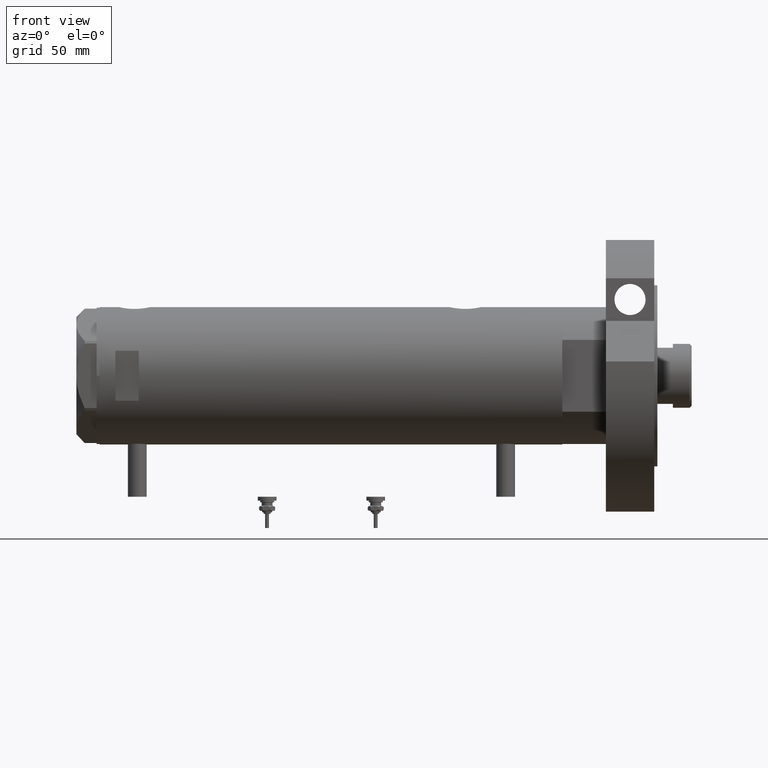
[diagram: clean part render]
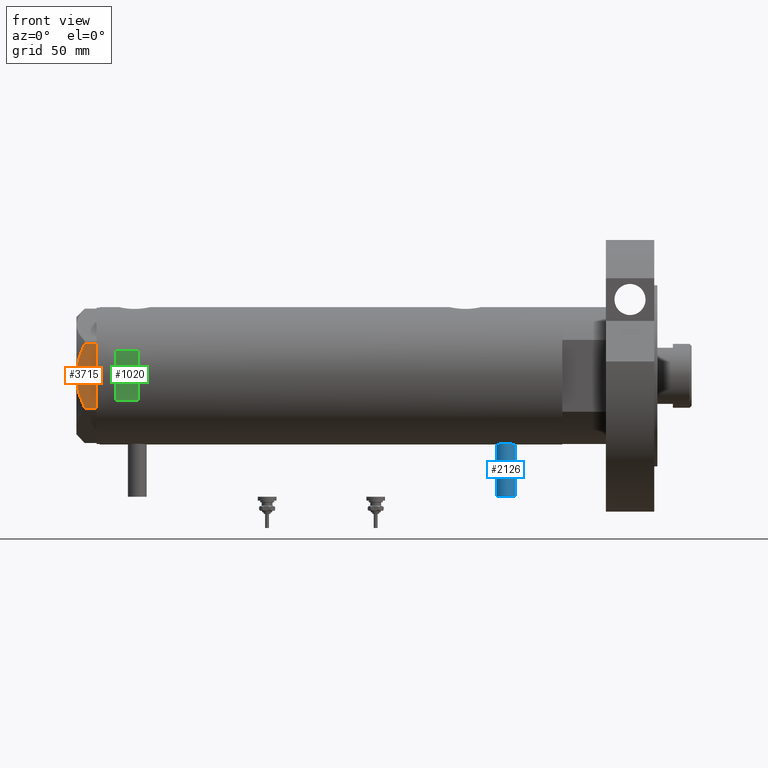
[diagram: same view with three faces highlighted in distinct colors, each labeled with its STEP entity id]
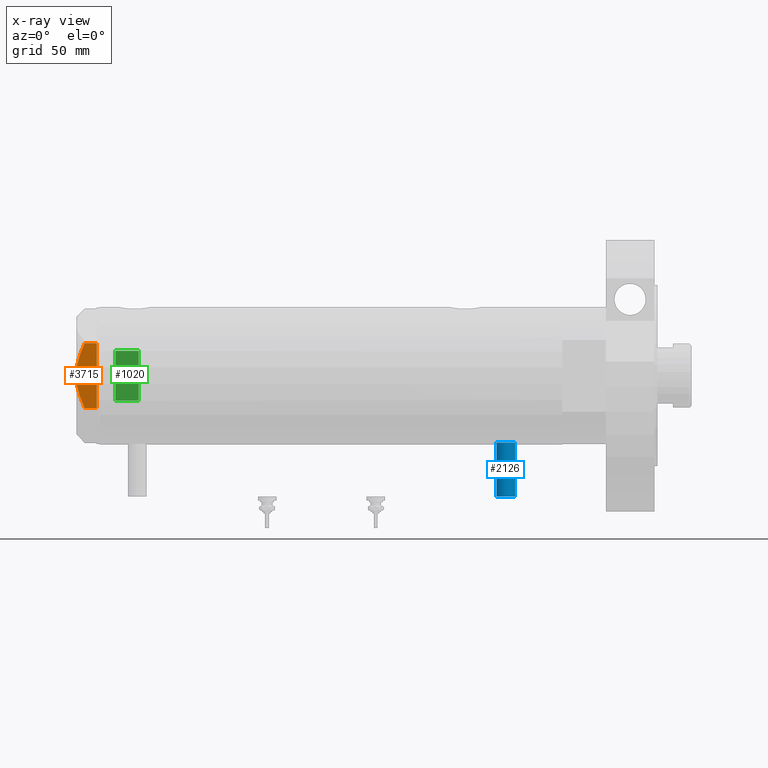
[diagram: x-ray of the same camera — body ghosted, the three highlighted faces saturated]
A machine part, front view with three faces highlighted in distinct colors.
The next image is the same camera in x-ray (body ghosted, the three faces saturated) — at least one of them is partly hidden behind the body in this view.
Their STEP definitions:

[orange] entity #3715 — the highlighted planar face has unit normal (-0, 1, 0).
#387 = B_SPLINE_CURVE_WITH_KNOTS ( 'NONE', 3,
 ( #6785, #2251, #7489, #425, #2857, #4005, #1614, #5679, #4542, #509, #4504, #1682, #6828, #5188 ),
 .UNSPECIFIED., .F., .F.,
 ( 4, 2, 2, 2, 2, 2, 4 ),
 ( 0.07749717587205659508, 0.08017617902235898986, 0.08285518217266138463, 0.08821318847326617418, 0.09357119477387096373, 0.09625019792417334463, 0.09892920107447573941 ),
 .UNSPECIFIED. ) ;
#425 = CARTESIAN_POINT ( 'NONE',  ( -37.74999999999998579, -3.611424898442238351, 12.83826937481876662 ) ) ;
#493 = CARTESIAN_POINT ( 'NONE',  ( -37.75000000000000711, 20.67497266190838090, 7.709124142616995634 ) ) ;
#509 = CARTESIAN_POINT ( 'NONE',  ( -37.74999999999999289, -16.56731140591524110, 9.531835068628826235 ) ) ;
#732 = VECTOR ( 'NONE', #4762, 1000.000000000000000 ) ;
#779 = ORIENTED_EDGE ( 'NONE', *, *, #4718, .F. ) ;
#1261 = CARTESIAN_POINT ( 'NONE',  ( -37.75000000000000711, 20.67497266190837024, 0.000000000000000000 ) ) ;
#1597 = CARTESIAN_POINT ( 'NONE',  ( -37.75000000000000711, 3.615248338761639868, 13.00000000000000355 ) ) ;
#1614 = CARTESIAN_POINT ( 'NONE',  ( -37.75000000000000000, -8.905753572404320195, 11.99914237172014886 ) ) ;
#1682 = CARTESIAN_POINT ( 'NONE',  ( -37.75000000000000000, -19.05362936076134517, 8.470554105526115762 ) ) ;
#1753 = CARTESIAN_POINT ( 'NONE',  ( -37.75000000000000000, -1.201851678989727067E-14, 13.00000000000000000 ) ) ;
#2251 = CARTESIAN_POINT ( 'NONE',  ( -37.75000000000000000, -0.9015134592203577490, 13.00000000000000178 ) ) ;
#2254 = ORIENTED_EDGE ( 'NONE', *, *, #5180, .T. ) ;
#2503 = PLANE ( 'NONE',  #3871 ) ;
#2546 = VERTEX_POINT ( 'NONE', #4018 ) ;
#2652 = VECTOR ( 'NONE', #7293, 1000.000000000000000 ) ;
#2763 = CARTESIAN_POINT ( 'NONE',  ( -37.74999999999999289, 14.04433099034388199, 10.48027127384610857 ) ) ;
#2857 = CARTESIAN_POINT ( 'NONE',  ( -37.75000000000000000, -4.503994958793054337, 12.74237531377022670 ) ) ;
#3148 = CARTESIAN_POINT ( 'NONE',  ( -37.75000000000000711, 20.67497266190838090, 7.709124142616995634 ) ) ;
#3294 = DIRECTION ( 'NONE',  ( -3.183713056926429451E-16, 1.000000000000000000, 0.000000000000000000 ) ) ;
#3388 = LINE ( 'NONE', #5890, #732 ) ;
#3548 = VERTEX_POINT ( 'NONE', #6290 ) ;
#3565 = CARTESIAN_POINT ( 'NONE',  ( -37.75000000000000711, 20.67497266190837024, 13.00000000000000000 ) ) ;
#3715 = ADVANCED_FACE ( 'NONE', ( #7383 ), #2503, .F. ) ;
#3827 = CARTESIAN_POINT ( 'NONE',  ( -37.75000000000000000, 17.42329546264825524, 9.202188366597436442 ) ) ;
#3871 = AXIS2_PLACEMENT_3D ( 'NONE', #7165, #4975, #3294 ) ;
#4005 = CARTESIAN_POINT ( 'NONE',  ( -37.74999999999999289, -7.161343005612803125, 12.36677985830371895 ) ) ;
#4018 = CARTESIAN_POINT ( 'NONE',  ( -37.74999999999999289, -20.67497266190837379, 0.000000000000000000 ) ) ;
#4321 = ORIENTED_EDGE ( 'NONE', *, *, #5819, .T. ) ;
#4487 = CARTESIAN_POINT ( 'NONE',  ( -37.75000000000000000, 7.143641079404827288, 12.47474846747316946 ) ) ;
#4504 = CARTESIAN_POINT ( 'NONE',  ( -37.75000000000000000, -17.40390235304479205, 9.187919079516763787 ) ) ;
#4528 = CARTESIAN_POINT ( 'NONE',  ( -37.74999999999999289, 12.33018559404073855, 11.04557586999680474 ) ) ;
#4542 = CARTESIAN_POINT ( 'NONE',  ( -37.74999999999999289, -14.04742653794399132, 10.50092616350622698 ) ) ;
#4718 = EDGE_CURVE ( 'NONE', #7322, #3548, #387, .T. ) ;
#4762 = DIRECTION ( 'NONE',  ( 0.000000000000000000, 0.000000000000000000, 1.000000000000000000 ) ) ;
#4957 = CARTESIAN_POINT ( 'NONE',  ( -37.75000000000000711, 21.79497266190837124, 0.000000000000000000 ) ) ;
#4975 = DIRECTION ( 'NONE',  ( 1.000000000000000000, 3.183713056926429451E-16, -0.000000000000000000 ) ) ;
#5010 = ORIENTED_EDGE ( 'NONE', *, *, #6378, .T. ) ;
#5180 = EDGE_CURVE ( 'NONE', #5357, #7336, #5786, .T. ) ;
#5188 = CARTESIAN_POINT ( 'NONE',  ( -37.74999999999999289, -20.67497266190838090, 7.709124142616975206 ) ) ;
#5357 = VERTEX_POINT ( 'NONE', #3148 ) ;
#5567 = LINE ( 'NONE', #4957, #2652 ) ;
#5679 = CARTESIAN_POINT ( 'NONE',  ( -37.74999999999999289, -12.34877760086739862, 11.06613894200179260 ) ) ;
#5704 = CARTESIAN_POINT ( 'NONE',  ( -37.75000000000000000, 14.89874562435961103, 10.17375260246623903 ) ) ;
#5786 = LINE ( 'NONE', #3565, #7413 ) ;
#5819 = EDGE_CURVE ( 'NONE', #7336, #2546, #5567, .T. ) ;
#5890 = CARTESIAN_POINT ( 'NONE',  ( -37.74999999999999289, -20.67497266190837379, 13.00000000000000000 ) ) ;
#6290 = CARTESIAN_POINT ( 'NONE',  ( -37.74999999999999289, -20.67497266190838090, 7.709124142616975206 ) ) ;
#6378 = EDGE_CURVE ( 'NONE', #2546, #3548, #3388, .T. ) ;
#6447 = ORIENTED_EDGE ( 'NONE', *, *, #6733, .F. ) ;
#6701 = B_SPLINE_CURVE_WITH_KNOTS ( 'NONE', 3,
 ( #493, #7476, #3827, #5704, #2763, #4528, #7387, #4487, #1597, #6851 ),
 .UNSPECIFIED., .F., .F.,
 ( 4, 2, 2, 2, 4 ),
 ( 0.05601050456479945983, 0.06138217239161374017, 0.06406800630502088034, 0.06675384021842802051, 0.07749717587205659508 ),
 .UNSPECIFIED. ) ;
#6733 = EDGE_CURVE ( 'NONE', #5357, #7322, #6701, .T. ) ;
#6785 = CARTESIAN_POINT ( 'NONE',  ( -37.75000000000000000, -1.201851678989727067E-14, 13.00000000000000000 ) ) ;
#6828 = CARTESIAN_POINT ( 'NONE',  ( -37.75000000000000000, -19.86857906850810096, 8.096480699986589258 ) ) ;
#6851 = CARTESIAN_POINT ( 'NONE',  ( -37.75000000000000000, -1.201851678989727067E-14, 13.00000000000000000 ) ) ;
#6870 = EDGE_LOOP ( 'NONE', ( #6447, #2254, #4321, #5010, #779 ) ) ;
#7048 = DIRECTION ( 'NONE',  ( 0.000000000000000000, 0.000000000000000000, -1.000000000000000000 ) ) ;
#7165 = CARTESIAN_POINT ( 'NONE',  ( -37.75000000000000711, 21.79497266190837124, 13.00000000000000000 ) ) ;
#7293 = DIRECTION ( 'NONE',  ( 3.183713056926429451E-16, -1.000000000000000000, 0.000000000000000000 ) ) ;
#7322 = VERTEX_POINT ( 'NONE', #1753 ) ;
#7336 = VERTEX_POINT ( 'NONE', #1261 ) ;
#7383 = FACE_OUTER_BOUND ( 'NONE', #6870, .T. ) ;
#7387 = CARTESIAN_POINT ( 'NONE',  ( -37.74999999999999289, 11.46926194450821690, 11.30493988086503521 ) ) ;
#7413 = VECTOR ( 'NONE', #7048, 1000.000000000000000 ) ;
#7476 = CARTESIAN_POINT ( 'NONE',  ( -37.75000000000001421, 19.06473524669327446, 8.482612457517163307 ) ) ;
#7489 = CARTESIAN_POINT ( 'NONE',  ( -37.75000000000000000, -1.811728074765795338, 12.96720910498919999 ) ) ;

[blue] entity #2126 — the highlighted cylindrical surface (edge-blend (fillet) strip) has radius 6 mm, axis along (0, 0, 1).
#100 = AXIS2_PLACEMENT_3D ( 'NONE', #1947, #4273, #7136 ) ;
#152 = EDGE_CURVE ( 'NONE', #566, #1267, #6365, .T. ) ;
#489 = CYLINDRICAL_SURFACE ( 'NONE', #5435, 6.000000000000005329 ) ;
#499 = ORIENTED_EDGE ( 'NONE', *, *, #6903, .F. ) ;
#530 = DIRECTION ( 'NONE',  ( 0.000000000000000000, 0.000000000000000000, -1.000000000000000000 ) ) ;
#566 = VERTEX_POINT ( 'NONE', #6968 ) ;
#580 = CARTESIAN_POINT ( 'NONE',  ( -42.79999999999999716, 7.347880794884119736E-16, -105.8999999999999915 ) ) ;
#814 = AXIS2_PLACEMENT_3D ( 'NONE', #1011, #5503, #4929 ) ;
#1011 = CARTESIAN_POINT ( 'NONE',  ( -77.50000000000000000, 0.000000000000000000, -111.9000000000000057 ) ) ;
#1267 = VERTEX_POINT ( 'NONE', #1612 ) ;
#1481 = CARTESIAN_POINT ( 'NONE',  ( -77.50000000000000000, 7.347880794884119736E-16, -105.8999999999999915 ) ) ;
#1540 = DIRECTION ( 'NONE',  ( 1.000000000000000000, -0.000000000000000000, -0.000000000000000000 ) ) ;
#1612 = CARTESIAN_POINT ( 'NONE',  ( -42.79999999999999716, 0.000000000000000000, -117.9000000000000057 ) ) ;
#1947 = CARTESIAN_POINT ( 'NONE',  ( -42.79999999999999716, 0.000000000000000000, -111.9000000000000057 ) ) ;
#2126 = ADVANCED_FACE ( 'NONE', ( #3378 ), #489, .T. ) ;
#2418 = EDGE_CURVE ( 'NONE', #566, #3008, #7389, .T. ) ;
#2672 = LINE ( 'NONE', #3173, #6944 ) ;
#3008 = VERTEX_POINT ( 'NONE', #1481 ) ;
#3173 = CARTESIAN_POINT ( 'NONE',  ( -77.50000000000000000, 7.347880794884122694E-16, -105.8999999999999915 ) ) ;
#3209 = VECTOR ( 'NONE', #4653, 1000.000000000000000 ) ;
#3378 = FACE_OUTER_BOUND ( 'NONE', #4671, .T. ) ;
#3443 = EDGE_CURVE ( 'NONE', #1267, #4856, #5331, .T. ) ;
#3451 = CARTESIAN_POINT ( 'NONE',  ( -77.50000000000000000, 0.000000000000000000, -111.9000000000000057 ) ) ;
#3500 = CARTESIAN_POINT ( 'NONE',  ( -77.50000000000000000, 0.000000000000000000, -117.9000000000000057 ) ) ;
#3632 = ORIENTED_EDGE ( 'NONE', *, *, #152, .T. ) ;
#4273 = DIRECTION ( 'NONE',  ( -1.000000000000000000, 0.000000000000000000, 0.000000000000000000 ) ) ;
#4653 = DIRECTION ( 'NONE',  ( 1.000000000000000000, -0.000000000000000000, -0.000000000000000000 ) ) ;
#4671 = EDGE_LOOP ( 'NONE', ( #499, #4898, #3632, #6985 ) ) ;
#4856 = VERTEX_POINT ( 'NONE', #580 ) ;
#4898 = ORIENTED_EDGE ( 'NONE', *, *, #2418, .F. ) ;
#4929 = DIRECTION ( 'NONE',  ( 0.000000000000000000, 0.000000000000000000, 1.000000000000000000 ) ) ;
#5331 = CIRCLE ( 'NONE', #100, 6.000000000000005329 ) ;
#5435 = AXIS2_PLACEMENT_3D ( 'NONE', #3451, #5702, #530 ) ;
#5503 = DIRECTION ( 'NONE',  ( -1.000000000000000000, 0.000000000000000000, 0.000000000000000000 ) ) ;
#5702 = DIRECTION ( 'NONE',  ( 1.000000000000000000, -0.000000000000000000, -0.000000000000000000 ) ) ;
#6365 = LINE ( 'NONE', #3500, #3209 ) ;
#6903 = EDGE_CURVE ( 'NONE', #3008, #4856, #2672, .T. ) ;
#6944 = VECTOR ( 'NONE', #1540, 1000.000000000000000 ) ;
#6968 = CARTESIAN_POINT ( 'NONE',  ( -77.50000000000000000, 0.000000000000000000, -117.9000000000000057 ) ) ;
#6985 = ORIENTED_EDGE ( 'NONE', *, *, #3443, .T. ) ;
#7136 = DIRECTION ( 'NONE',  ( 0.000000000000000000, 0.000000000000000000, 1.000000000000000000 ) ) ;
#7389 = CIRCLE ( 'NONE', #814, 6.000000000000005329 ) ;

[green] entity #1020 — the highlighted planar face has unit normal (-0, 1, 0).
#482 = LINE ( 'NONE', #6347, #5924 ) ;
#912 = AXIS2_PLACEMENT_3D ( 'NONE', #2757, #1629, #7507 ) ;
#929 = CARTESIAN_POINT ( 'NONE',  ( -44.00000000000000000, -40.99999999999999289, 138.1999999999999886 ) ) ;
#1020 = ADVANCED_FACE ( 'NONE', ( #6881 ), #2266, .F. ) ;
#1274 = CARTESIAN_POINT ( 'NONE',  ( 15.96871942267132027, -40.99999999999999289, 138.1999999999999886 ) ) ;
#1426 = LINE ( 'NONE', #7340, #2148 ) ;
#1616 = CARTESIAN_POINT ( 'NONE',  ( 15.96871942267132027, -40.99999999999999289, 123.1999999999999744 ) ) ;
#1629 = DIRECTION ( 'NONE',  ( 0.000000000000000000, 1.000000000000000000, 0.000000000000000000 ) ) ;
#1888 = EDGE_LOOP ( 'NONE', ( #4048, #4682, #6182, #2950 ) ) ;
#2029 = VECTOR ( 'NONE', #5007, 1000.000000000000000 ) ;
#2148 = VECTOR ( 'NONE', #6718, 1000.000000000000000 ) ;
#2189 = EDGE_CURVE ( 'NONE', #6664, #5882, #3983, .T. ) ;
#2266 = PLANE ( 'NONE',  #912 ) ;
#2334 = EDGE_CURVE ( 'NONE', #5882, #5559, #1426, .T. ) ;
#2466 = EDGE_CURVE ( 'NONE', #5382, #6664, #482, .T. ) ;
#2757 = CARTESIAN_POINT ( 'NONE',  ( -44.00000000000000000, -40.99999999999999289, 138.1999999999999886 ) ) ;
#2950 = ORIENTED_EDGE ( 'NONE', *, *, #4197, .F. ) ;
#3983 = LINE ( 'NONE', #6273, #4713 ) ;
#4048 = ORIENTED_EDGE ( 'NONE', *, *, #2466, .T. ) ;
#4197 = EDGE_CURVE ( 'NONE', #5382, #5559, #4926, .T. ) ;
#4682 = ORIENTED_EDGE ( 'NONE', *, *, #2189, .T. ) ;
#4713 = VECTOR ( 'NONE', #5136, 1000.000000000000000 ) ;
#4926 = LINE ( 'NONE', #929, #2029 ) ;
#5007 = DIRECTION ( 'NONE',  ( 1.000000000000000000, -0.000000000000000000, -0.000000000000000000 ) ) ;
#5136 = DIRECTION ( 'NONE',  ( 1.000000000000000000, -0.000000000000000000, -0.000000000000000000 ) ) ;
#5382 = VERTEX_POINT ( 'NONE', #6080 ) ;
#5559 = VERTEX_POINT ( 'NONE', #1274 ) ;
#5882 = VERTEX_POINT ( 'NONE', #1616 ) ;
#5924 = VECTOR ( 'NONE', #6265, 1000.000000000000000 ) ;
#6042 = CARTESIAN_POINT ( 'NONE',  ( -15.96871942267132027, -40.99999999999999289, 123.1999999999999744 ) ) ;
#6080 = CARTESIAN_POINT ( 'NONE',  ( -15.96871942267132027, -40.99999999999999289, 138.1999999999999886 ) ) ;
#6182 = ORIENTED_EDGE ( 'NONE', *, *, #2334, .T. ) ;
#6265 = DIRECTION ( 'NONE',  ( -0.000000000000000000, -0.000000000000000000, -1.000000000000000000 ) ) ;
#6273 = CARTESIAN_POINT ( 'NONE',  ( -44.00000000000000000, -40.99999999999999289, 123.1999999999999886 ) ) ;
#6347 = CARTESIAN_POINT ( 'NONE',  ( -15.96871942267132027, -40.99999999999999289, -148.1999999999999886 ) ) ;
#6664 = VERTEX_POINT ( 'NONE', #6042 ) ;
#6718 = DIRECTION ( 'NONE',  ( 0.000000000000000000, 0.000000000000000000, 1.000000000000000000 ) ) ;
#6881 = FACE_OUTER_BOUND ( 'NONE', #1888, .T. ) ;
#7340 = CARTESIAN_POINT ( 'NONE',  ( 15.96871942267132027, -40.99999999999999289, -148.1999999999999886 ) ) ;
#7507 = DIRECTION ( 'NONE',  ( 0.000000000000000000, -0.000000000000000000, 1.000000000000000000 ) ) ;